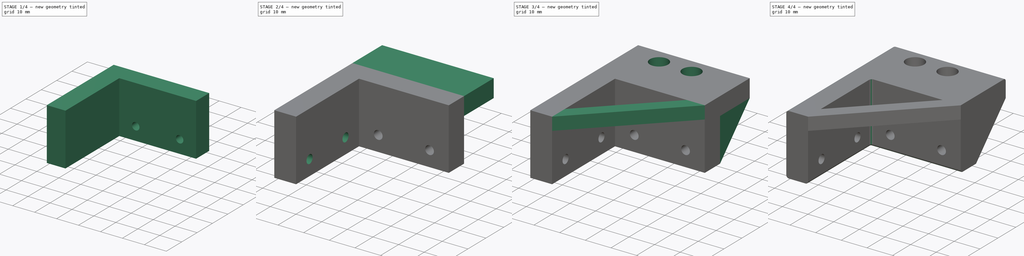
[diagram: build sequence overview — one tinted view per stage of 4, left to right]
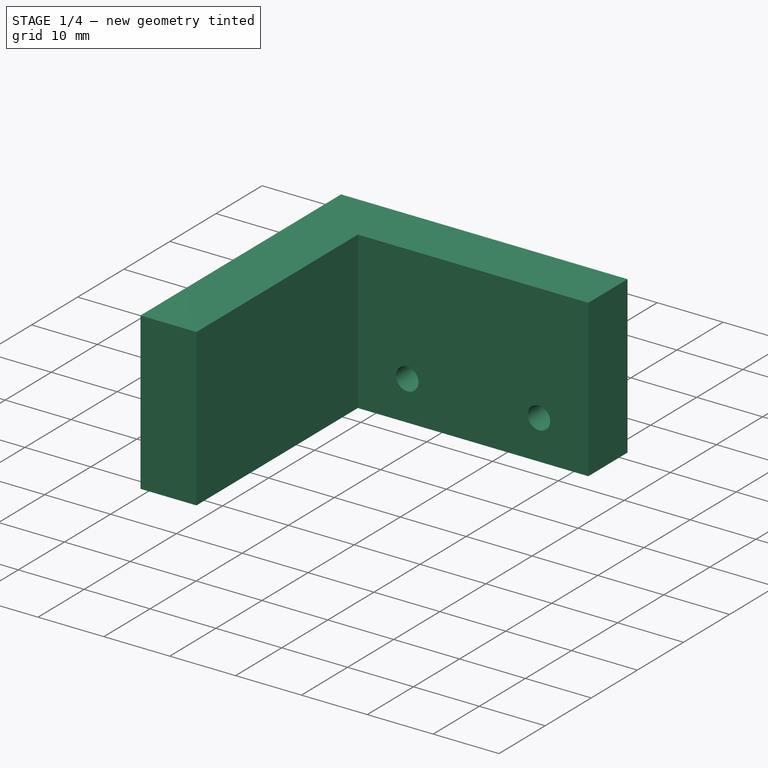
[diagram: stage 1 of 4 — iso view after this stage's code; geometry added in this stage tinted green]
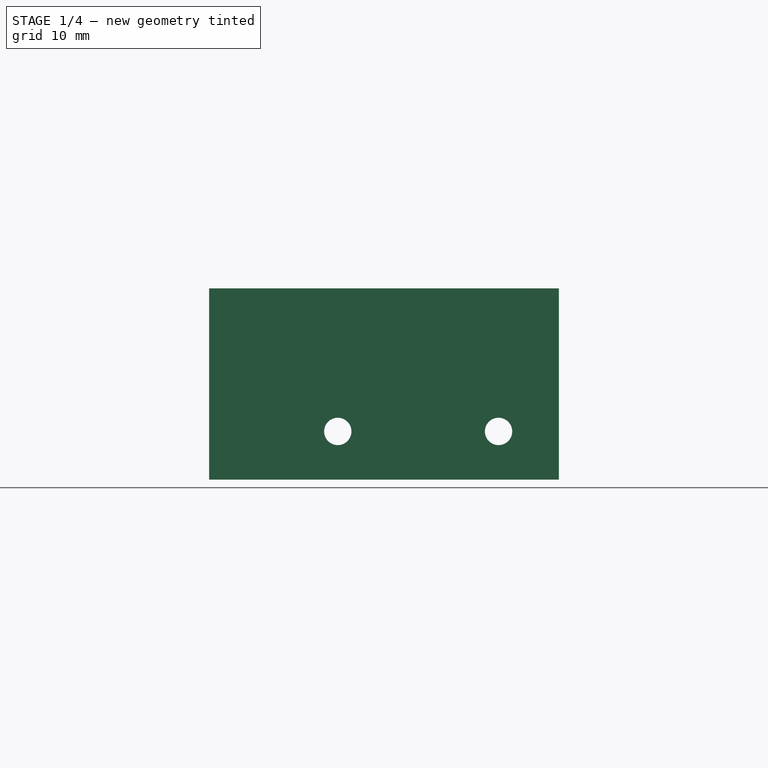
[diagram: stage 1 of 4 — front view after this stage's code; geometry added in this stage tinted green]
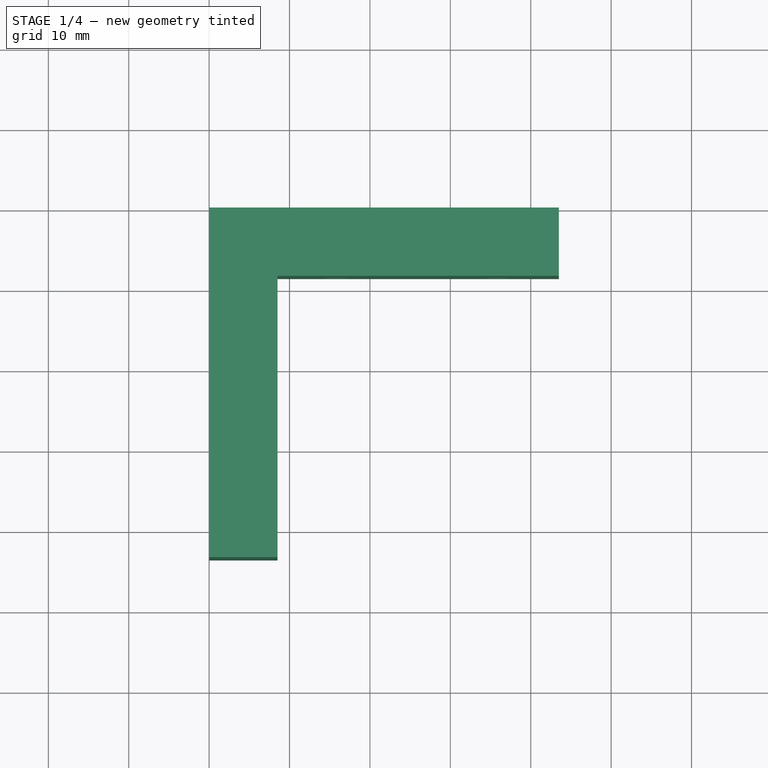
[diagram: stage 1 of 4 — top view after this stage's code; geometry added in this stage tinted green]
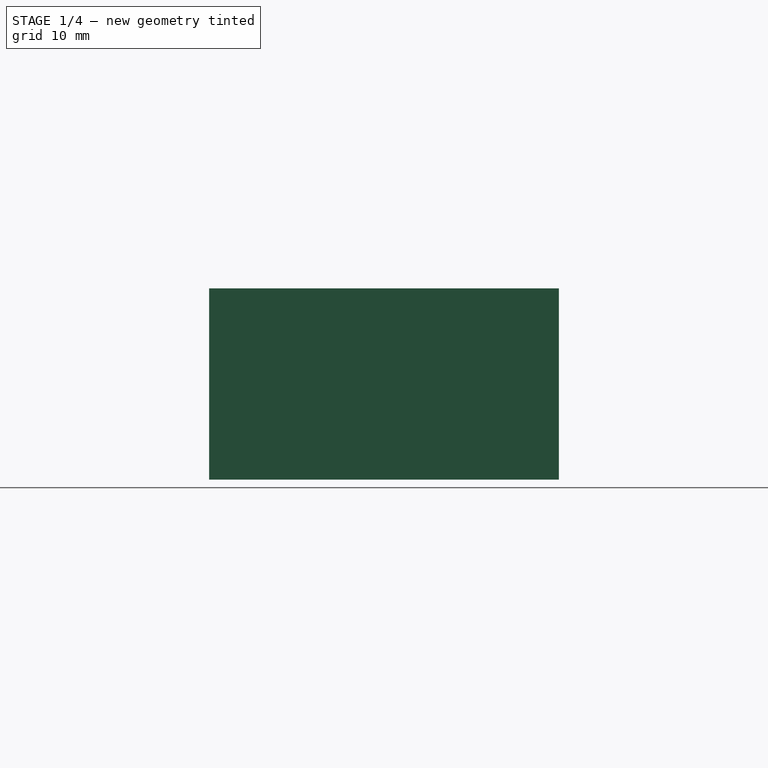
[diagram: stage 1 of 4 — right view after this stage's code; geometry added in this stage tinted green]
FCSTD DOCUMENT  (FreeCAD 0.19R)
Label: prototype
License: All rights reserved
LicenseURL: http://en.wikipedia.org/wiki/All_rights_reserved
objects: Sketcher::SketchObject×6, PartDesign::Pad×4, PartDesign::Hole×2, PartDesign::Fillet×2, PartDesign::Plane×1, PartDesign::Mirrored×1, PartDesign::Body×1
note: 25 computed .brp shape members not serialized (recipe doc carries the construction recipe); baked Part::Feature solids carry a one-line shape summary decoded from their .brp

FEATURE [Sketcher::SketchObject] Sketch  label="frame_base_sk"
  FullyConstrained = true
  MapMode = 5
  Support = -> [XY_Plane]
  sketch-geometry (6):
    g0: LineSegment StartX=0 StartY=0 StartZ=0 EndX=43.5 EndY=0 EndZ=0
    g1: LineSegment StartX=43.5 StartY=0 StartZ=0 EndX=43.5 EndY=-8.5 EndZ=0
    g2: LineSegment StartX=43.5 StartY=-8.5 StartZ=0 EndX=8.5 EndY=-8.5 EndZ=0
    g3: LineSegment StartX=0 StartY=0 StartZ=0 EndX=0 EndY=-43.5 EndZ=0
    g4: LineSegment StartX=0 StartY=-43.5 StartZ=0 EndX=8.5 EndY=-43.5 EndZ=0
    g5: LineSegment StartX=8.5 StartY=-43.5 StartZ=0 EndX=8.5 EndY=-8.5 EndZ=0
  constraints (17):
    c: Coincident(g-1,g0)
    c: PointOnObject(g0,g-1)
    c: Coincident(g0,g1)
    c: Vertical(g1)
    c: Coincident(g1,g2)
    c: Horizontal(g2)
    c: DistanceX(g2,g2) = 35
    c: DistanceY(g1,g1) = 8.5
    c: Coincident(g3,g0)
    c: PointOnObject(g3,g-2)
    c: Coincident(g4,g3)
    c: Horizontal(g4)
    c: Coincident(g5,g4)
    c: Coincident(g5,g2)
    c: Vertical(g5)
    c: Equal(g2,g5)
    c: Equal(g1,g4)
FEATURE [PartDesign::Pad] Pad  label="frame_base"
  Direction = (1,1,1)
  Length = 23.8
  Length2 = 100
  Profile = -> Sketch
  Type = 0
FEATURE [Sketcher::SketchObject] Sketch002  label="M3_hole_sk"
  ExternalGeometry = -> [Pad]
  FullyConstrained = true
  MapMode = 5
  Placement = pos=(0,0,0) rot=(0,0.707107,0.707107;3.14159rad)
  Support = -> [Pad]
  expr: Constraints[5] = (35 - 20) / 2
  sketch-geometry (2):
    g0: Circle CenterX=-16 CenterY=6 CenterZ=0 NormalX=0 NormalY=0 NormalZ=1 AngleXU=0 Radius=1
    g1: Circle CenterX=-36 CenterY=6 CenterZ=0 NormalX=0 NormalY=0 NormalZ=1 AngleXU=0 Radius=1
  constraints (6):
    c: Horizontal(g0,g1)
    c: DistanceX(g1,g0) = 20
    c: Radius(g1) = 1
    c: Radius(g0) = 1
    c: DistanceY(g-3,g0) = 6
    c: DistanceX(g0,g-3) = 7.5
FEATURE [PartDesign::Hole] Hole  label="M3_hole"
  BaseFeature = -> Pad
  Depth = 25
  DepthType = 1
  Diameter = 3.4
  DrillForDepth = false
  DrillPoint = 1
  DrillPointAngle = 118
  HoleCutCountersinkAngle = 90
  HoleCutCustomValues = false
  HoleCutDepth = 0
  HoleCutDiameter = 6.1
  HoleCutType = 0
  ModelActualThread = false
  Profile = -> Sketch002
  Tapered = false
  TaperedAngle = 90
  ThreadAngle = 0
  ThreadClass = 0
  ThreadCutOffInner = 0
  ThreadCutOffOuter = 0
  ThreadDirection = 0
  ThreadFit = 0
  ThreadPitch = 0
  ThreadSize = 9
  ThreadType = 1
  Threaded = false
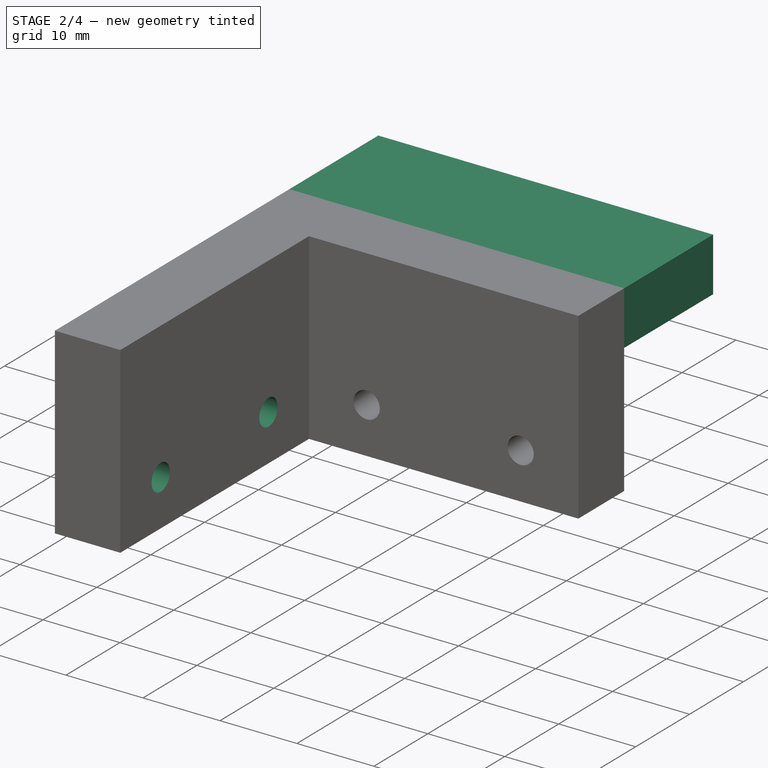
[diagram: stage 2 of 4 — iso view after this stage's code; geometry added in this stage tinted green]
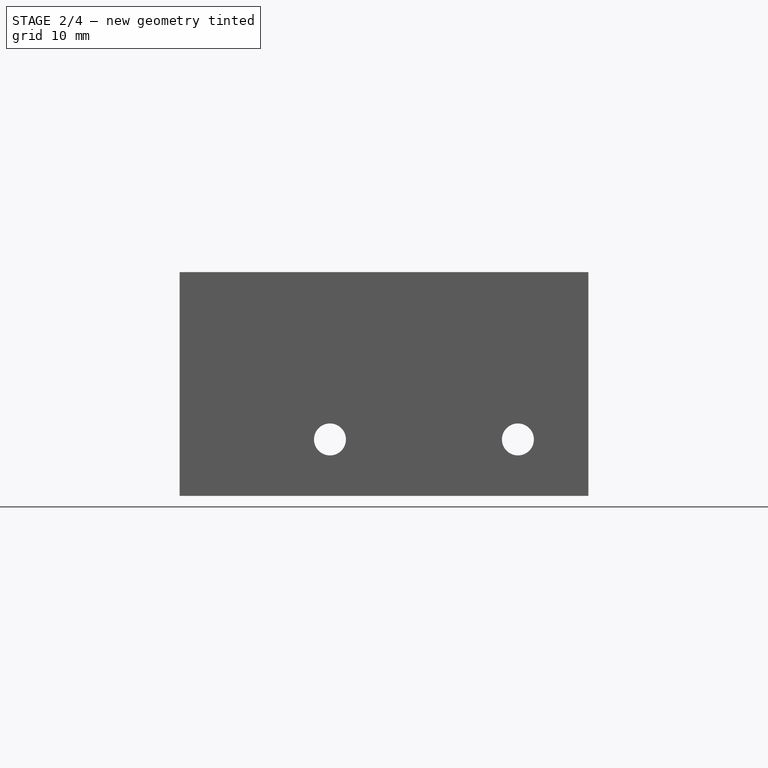
[diagram: stage 2 of 4 — front view after this stage's code; geometry added in this stage tinted green]
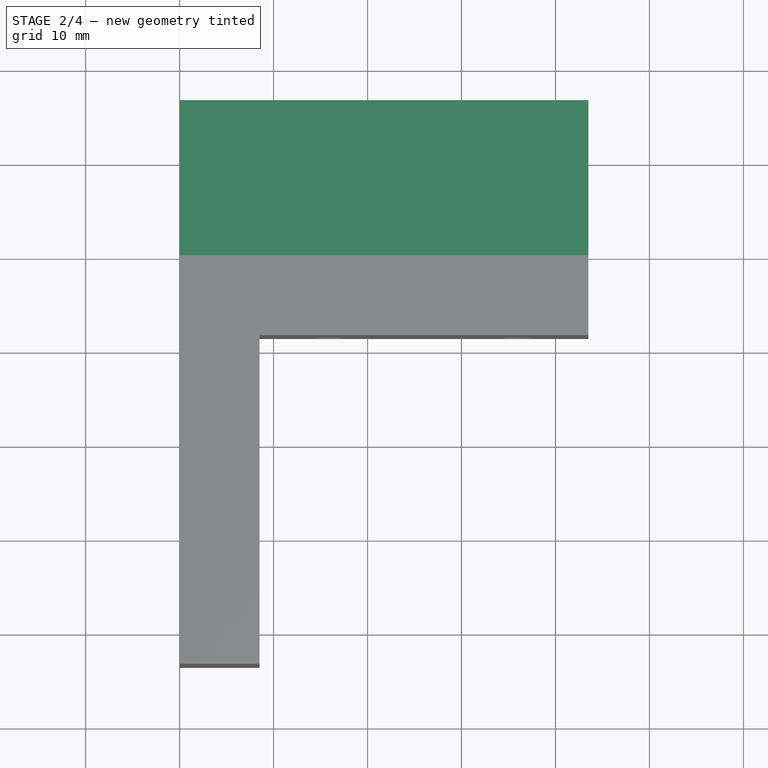
[diagram: stage 2 of 4 — top view after this stage's code; geometry added in this stage tinted green]
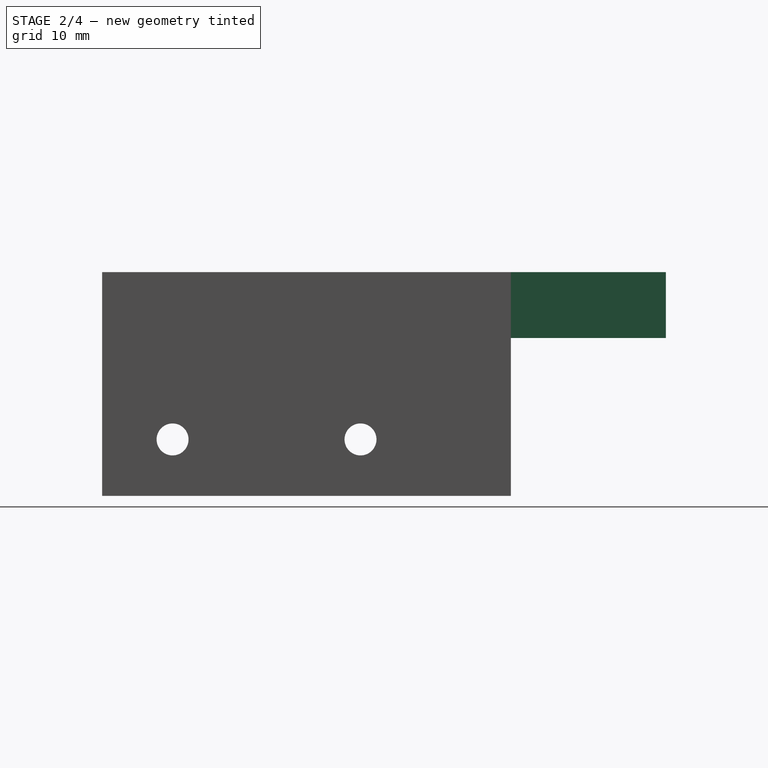
[diagram: stage 2 of 4 — right view after this stage's code; geometry added in this stage tinted green]
FEATURE [PartDesign::Plane] DatumPlane  label="mirro_plane"
  Length = 110.793
  MapMode = 13
  Placement = pos=(5.66667,-5.66667,7.93333) rot=(0.862856,-0.357407,-0.357407;1.71777rad)
  ResizeMode = 0
  Support = -> [Hole]
  Width = 63.9193
FEATURE [PartDesign::Mirrored] Mirrored  label="M3_hole_set"
  BaseFeature = -> Hole
  MirrorPlane = -> DatumPlane
  Originals = -> [Hole]
FEATURE [Sketcher::SketchObject] Sketch003  label="clamp_wall_sk"
  ExternalGeometry = -> [Mirrored]
  FullyConstrained = true
  MapMode = 5
  Placement = pos=(0,0,0) rot=(0,0.707107,0.707107;3.14159rad)
  Support = -> [Mirrored]
  sketch-geometry (4):
    g0: LineSegment StartX=-43.5 StartY=23.8 StartZ=0 EndX=0 EndY=23.8 EndZ=0
    g1: LineSegment StartX=0 StartY=23.8 StartZ=0 EndX=0 EndY=16.8 EndZ=0
    g2: LineSegment StartX=0 StartY=16.8 StartZ=0 EndX=-43.5 EndY=16.8 EndZ=0
    g3: LineSegment StartX=-43.5 StartY=16.8 StartZ=0 EndX=-43.5 EndY=23.8 EndZ=0
  constraints (11):
    c: Coincident(g0,g1)
    c: Coincident(g1,g2)
    c: Coincident(g2,g3)
    c: Coincident(g3,g0)
    c: Horizontal(g0)
    c: Horizontal(g2)
    c: Vertical(g1)
    c: Vertical(g3)
    c: Coincident(g0,g-3)
    c: PointOnObject(g1,g-2)
    c: DistanceY(g3,g3) = 7
FEATURE [PartDesign::Pad] Pad001  label="clamp_wall"
  BaseFeature = -> Mirrored
  Direction = (1,1,1)
  Length = 16.5
  Length2 = 100
  Profile = -> Sketch003
  Type = 0
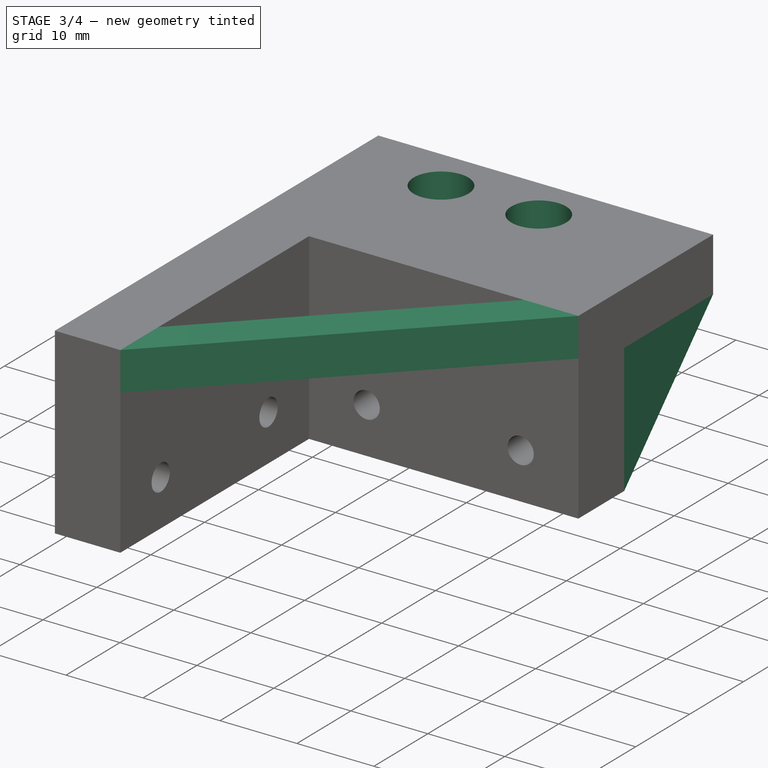
[diagram: stage 3 of 4 — iso view after this stage's code; geometry added in this stage tinted green]
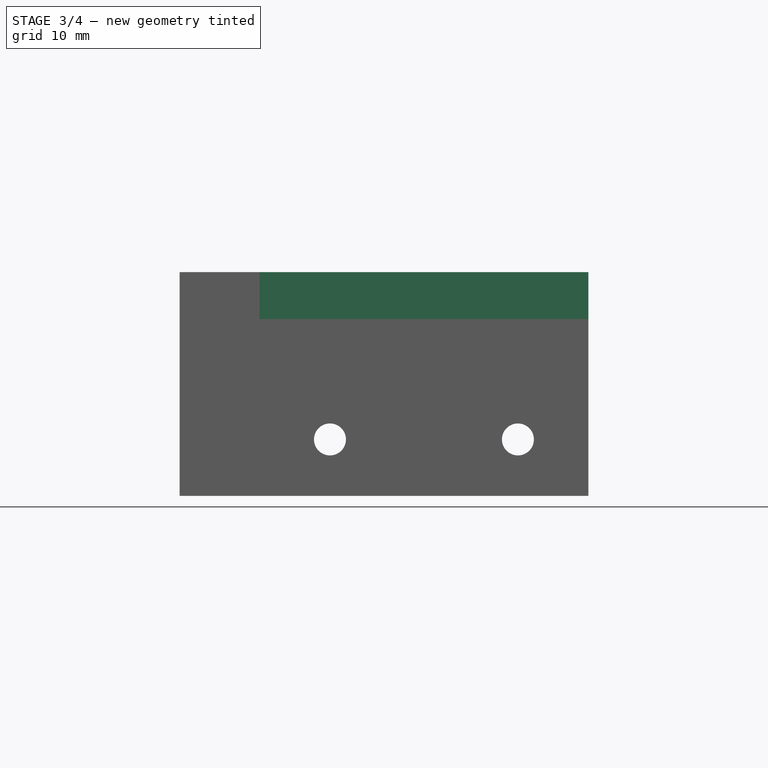
[diagram: stage 3 of 4 — front view after this stage's code; geometry added in this stage tinted green]
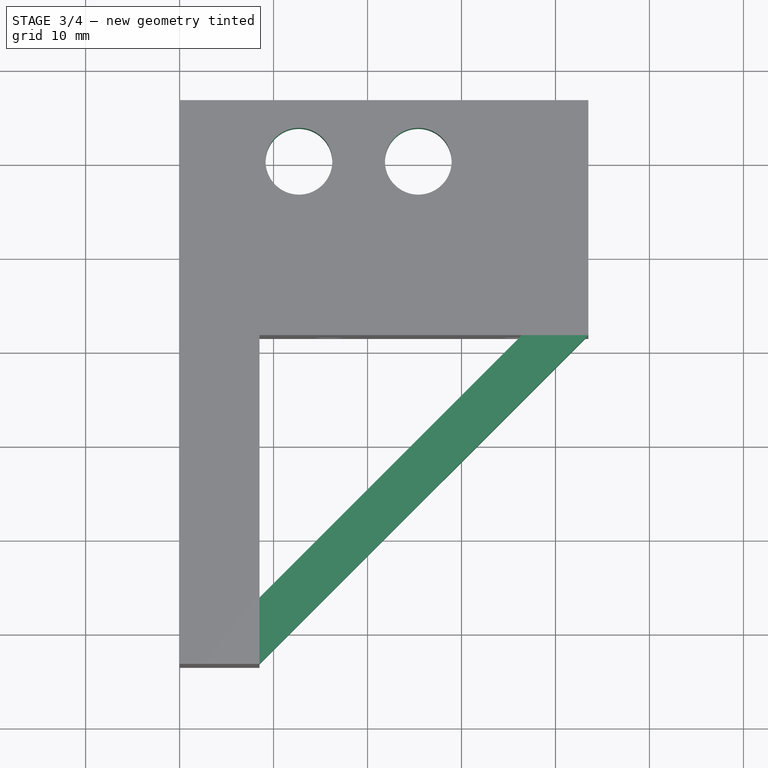
[diagram: stage 3 of 4 — top view after this stage's code; geometry added in this stage tinted green]
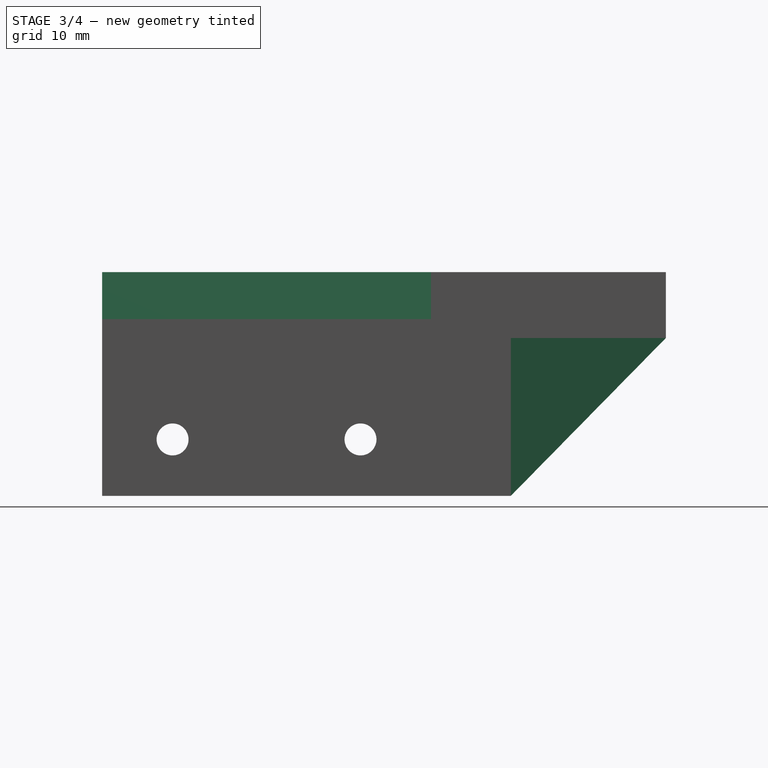
[diagram: stage 3 of 4 — right view after this stage's code; geometry added in this stage tinted green]
FEATURE [Sketcher::SketchObject] Sketch004  label="clamp_1on4_hole_sk"
  ExternalGeometry = -> [Pad001]
  FullyConstrained = true
  MapMode = 5
  Placement = pos=(0,5.3e-15,23.8) rot=(0,0,1;0rad)
  Support = -> [Pad001]
  sketch-geometry (2):
    g0: Circle CenterX=12.7 CenterY=10 CenterZ=0 NormalX=0 NormalY=0 NormalZ=1 AngleXU=0 Radius=1
    g1: Circle CenterX=25.4 CenterY=10 CenterZ=0 NormalX=0 NormalY=0 NormalZ=1 AngleXU=0 Radius=1
  constraints (6):
    c: Radius(g1) = 1
    c: Radius(g0) = 1
    c: Horizontal(g0,g1)
    c: DistanceY(g0,g-3) = 6.5
    c: DistanceX(g0,g1) = 12.7
    c: DistanceX(g-3,g0) = 12.7
FEATURE [PartDesign::Hole] Hole001  label="clamp_1on4_hole"
  BaseFeature = -> Pad001
  Depth = 25
  DepthType = 1
  Diameter = 7.1
  DrillForDepth = false
  DrillPoint = 1
  DrillPointAngle = 118
  HoleCutCountersinkAngle = 90
  HoleCutCustomValues = false
  HoleCutDepth = 0
  HoleCutDiameter = 6.1
  HoleCutType = 0
  ModelActualThread = false
  Profile = -> Sketch004
  Tapered = false
  TaperedAngle = 90
  ThreadAngle = 0
  ThreadClass = 0
  ThreadCutOffInner = 0
  ThreadCutOffOuter = 0
  ThreadDirection = 0
  ThreadFit = 0
  ThreadPitch = 0
  ThreadSize = 10
  ThreadType = 4
  Threaded = false
FEATURE [Sketcher::SketchObject] Sketch005  label="clamp_stiffen_sk"
  ExternalGeometry = -> [Hole001]
  FullyConstrained = true
  MapMode = 5
  Placement = pos=(43.5,0,0) rot=(0.57735,0.57735,0.57735;2.0944rad)
  Support = -> [Hole001]
  sketch-geometry (3):
    g0: LineSegment StartX=0 StartY=16.8 StartZ=0 EndX=16.5 EndY=16.8 EndZ=0
    g1: LineSegment StartX=16.5 StartY=16.8 StartZ=0 EndX=0 EndY=0 EndZ=0
    g2: LineSegment StartX=0 StartY=0 StartZ=0 EndX=0 EndY=16.8 EndZ=0
  constraints (6):
    c: Coincident(g0,g-4)
    c: Coincident(g0,g-3)
    c: Coincident(g1,g0)
    c: Coincident(g1,g-1)
    c: Coincident(g2,g1)
    c: Coincident(g2,g0)
FEATURE [PartDesign::Pad] Pad002  label="clamp_stiffen"
  BaseFeature = -> Hole001
  Direction = (1,1,1)
  Length = 3
  Length2 = 100
  Profile = -> Sketch005
  Reversed = true
  Type = 0
FEATURE [Sketcher::SketchObject] Sketch006  label="back_stiffen_sk"
  ExternalGeometry = -> [Pad002]
  FullyConstrained = true
  MapMode = 5
  Placement = pos=(0,0,23.8) rot=(0,0,1;0rad)
  Support = -> [Pad002]
  sketch-geometry (4):
    g0: LineSegment StartX=8.5 StartY=-43.5 StartZ=0 EndX=43.5 EndY=-8.5 EndZ=0
    g1: LineSegment StartX=43.5 StartY=-8.5 StartZ=0 EndX=36.4289 EndY=-8.5 EndZ=0
    g2: LineSegment StartX=36.4289 StartY=-8.5 StartZ=0 EndX=8.5 EndY=-36.4289 EndZ=0
    g3: LineSegment StartX=8.5 StartY=-36.4289 StartZ=0 EndX=8.5 EndY=-43.5 EndZ=0
  constraints (10):
    c: Coincident(g0,g-3)
    c: Coincident(g1,g0)
    c: PointOnObject(g1,g-3)
    c: Coincident(g2,g1)
    c: PointOnObject(g2,g-4)
    c: Coincident(g3,g2)
    c: Coincident(g3,g0)
    c: Parallel(g2,g0)
    c: Coincident(g0,g-4)
    c: Distance(g2,g0) = 5
FEATURE [PartDesign::Pad] Pad003  label="back_stiffen"
  BaseFeature = -> Pad002
  Direction = (1,1,1)
  Length = 5
  Length2 = 100
  Profile = -> Sketch006
  Reversed = true
  Type = 0
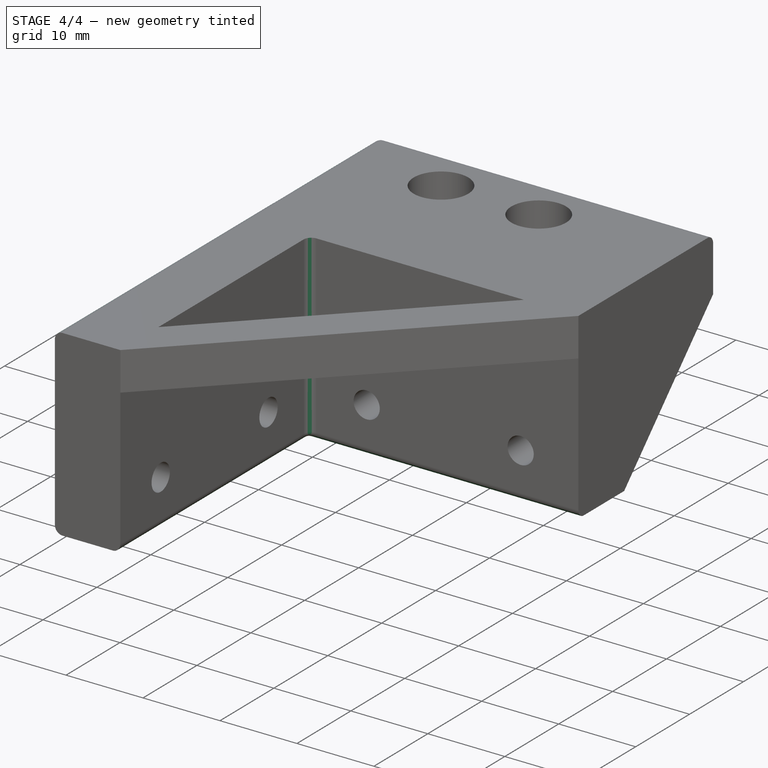
[diagram: stage 4 of 4 — iso view after this stage's code; geometry added in this stage tinted green]
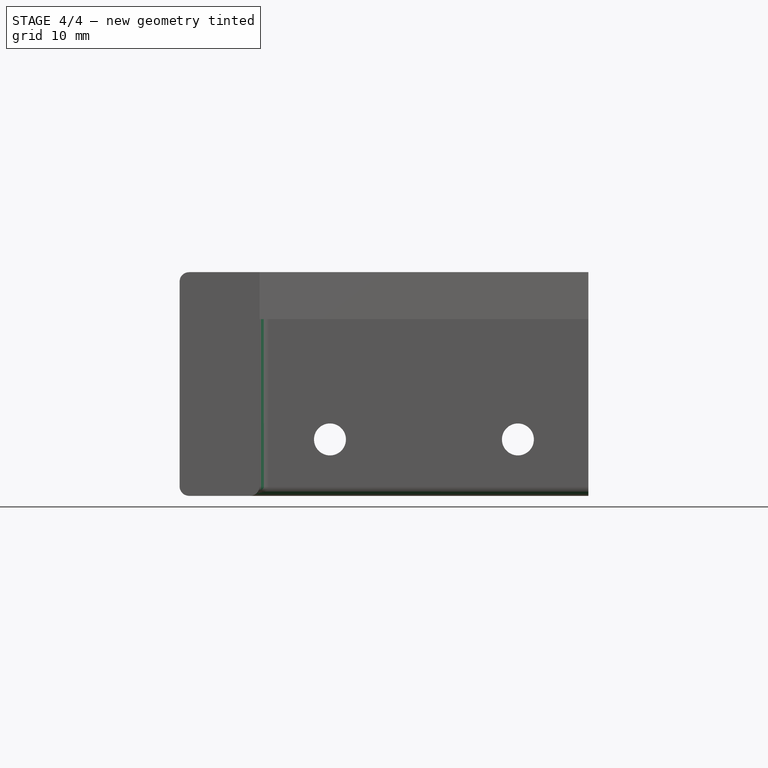
[diagram: stage 4 of 4 — front view after this stage's code; geometry added in this stage tinted green]
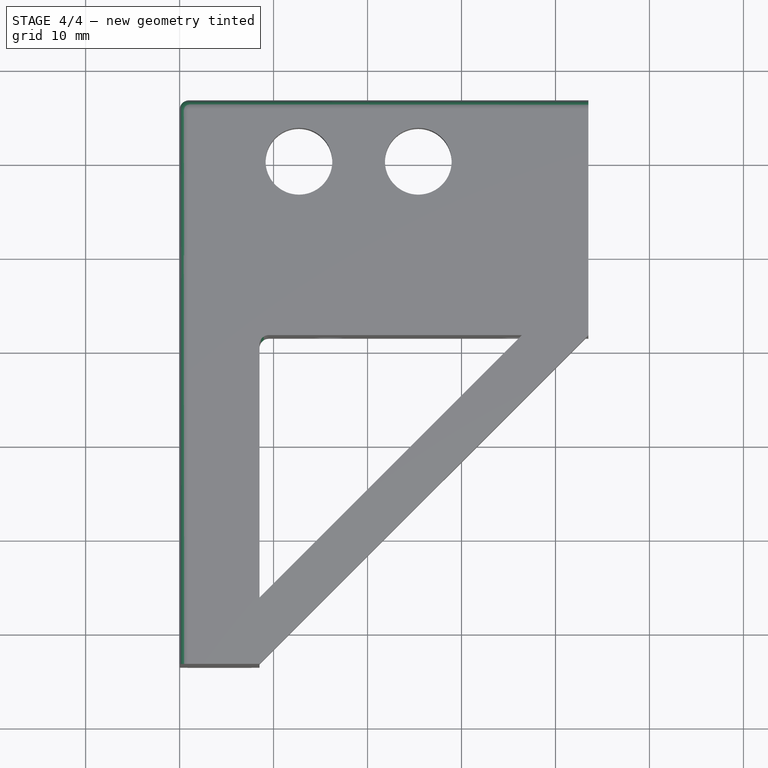
[diagram: stage 4 of 4 — top view after this stage's code; geometry added in this stage tinted green]
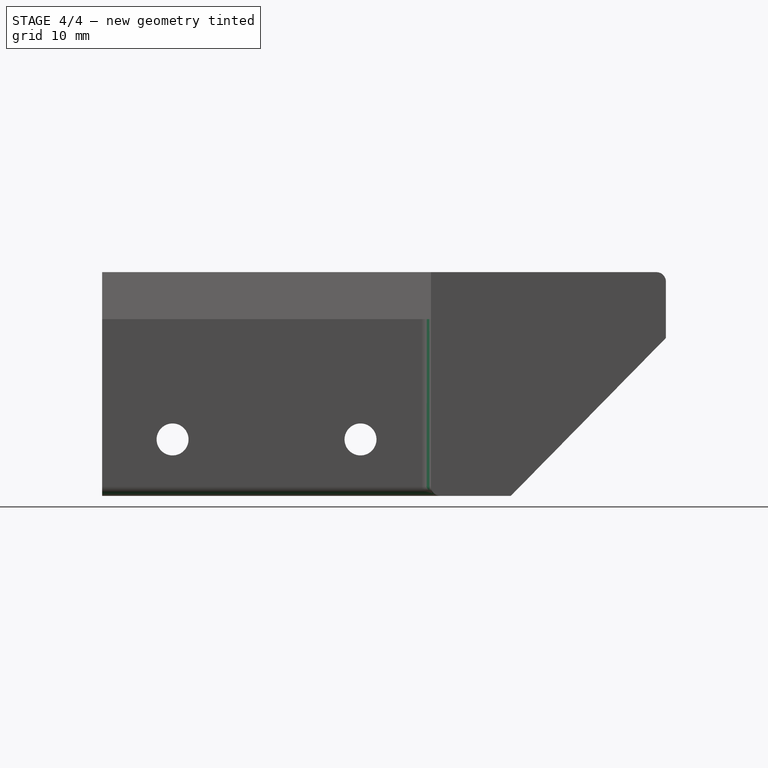
[diagram: stage 4 of 4 — right view after this stage's code; geometry added in this stage tinted green]
FEATURE [PartDesign::Fillet] Fillet  label="outer_fillet"
  Base = -> Pad003 [Edge48,Edge12,Edge20,Edge50,Edge10,Edge9,Edge47]
  BaseFeature = -> Pad003
  Radius = 1
  SupportTransform = false
FEATURE [PartDesign::Fillet] Fillet001  label="inner_fillet"
  Base = -> Fillet [Edge64]
  BaseFeature = -> Fillet
  Radius = 1
  SupportTransform = false
FEATURE [PartDesign::Body] Body
  Group = -> [Sketch,Pad,Sketch002,Hole,DatumPlane,Mirrored,Sketch003,Pad001,Sketch004,Hole001,Sketch005,Pad002,Sketch006,Pad003,Fillet,Fillet001]
  Origin = -> Origin
  Tip = -> Fillet001
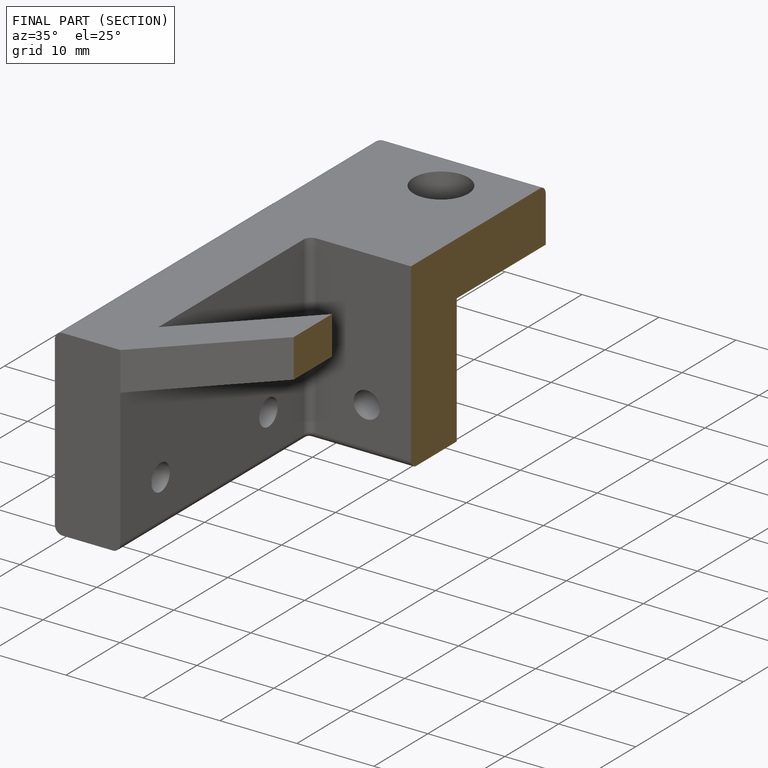
[diagram: finished part — half-section view (interior)]
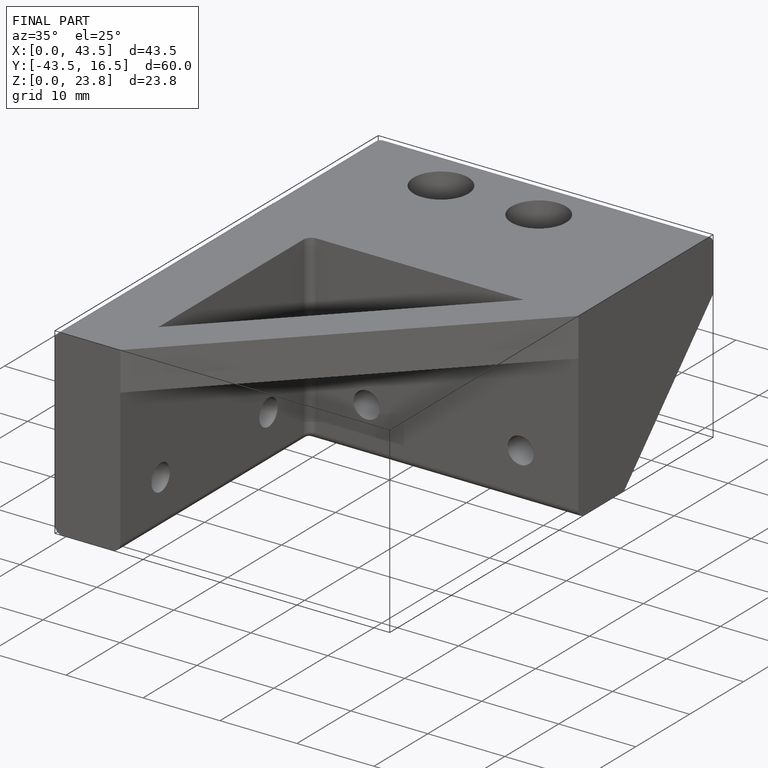
[diagram: finished part — iso view with bounding-box wireframe]
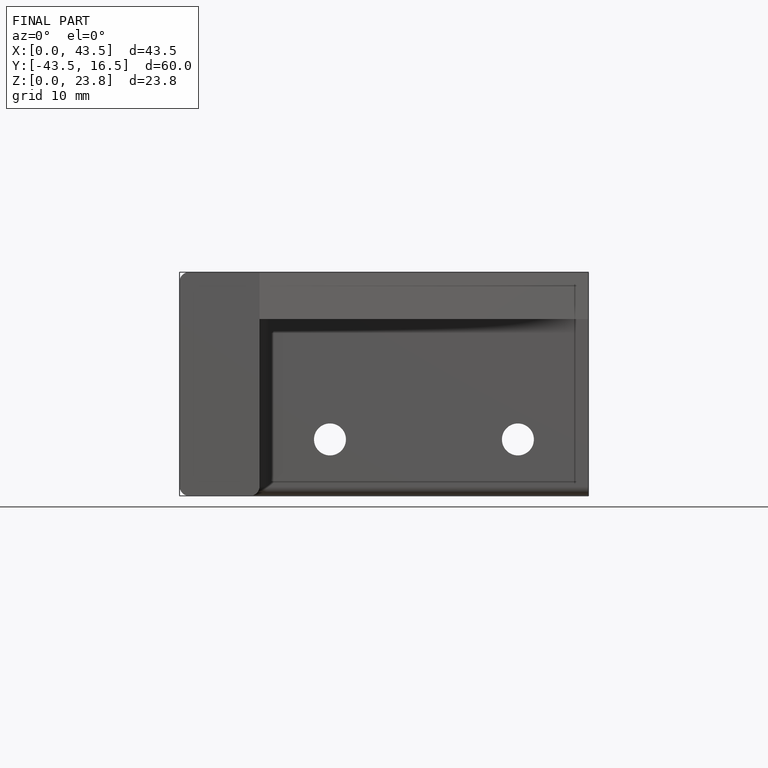
[diagram: finished part — front view with bounding-box wireframe]
